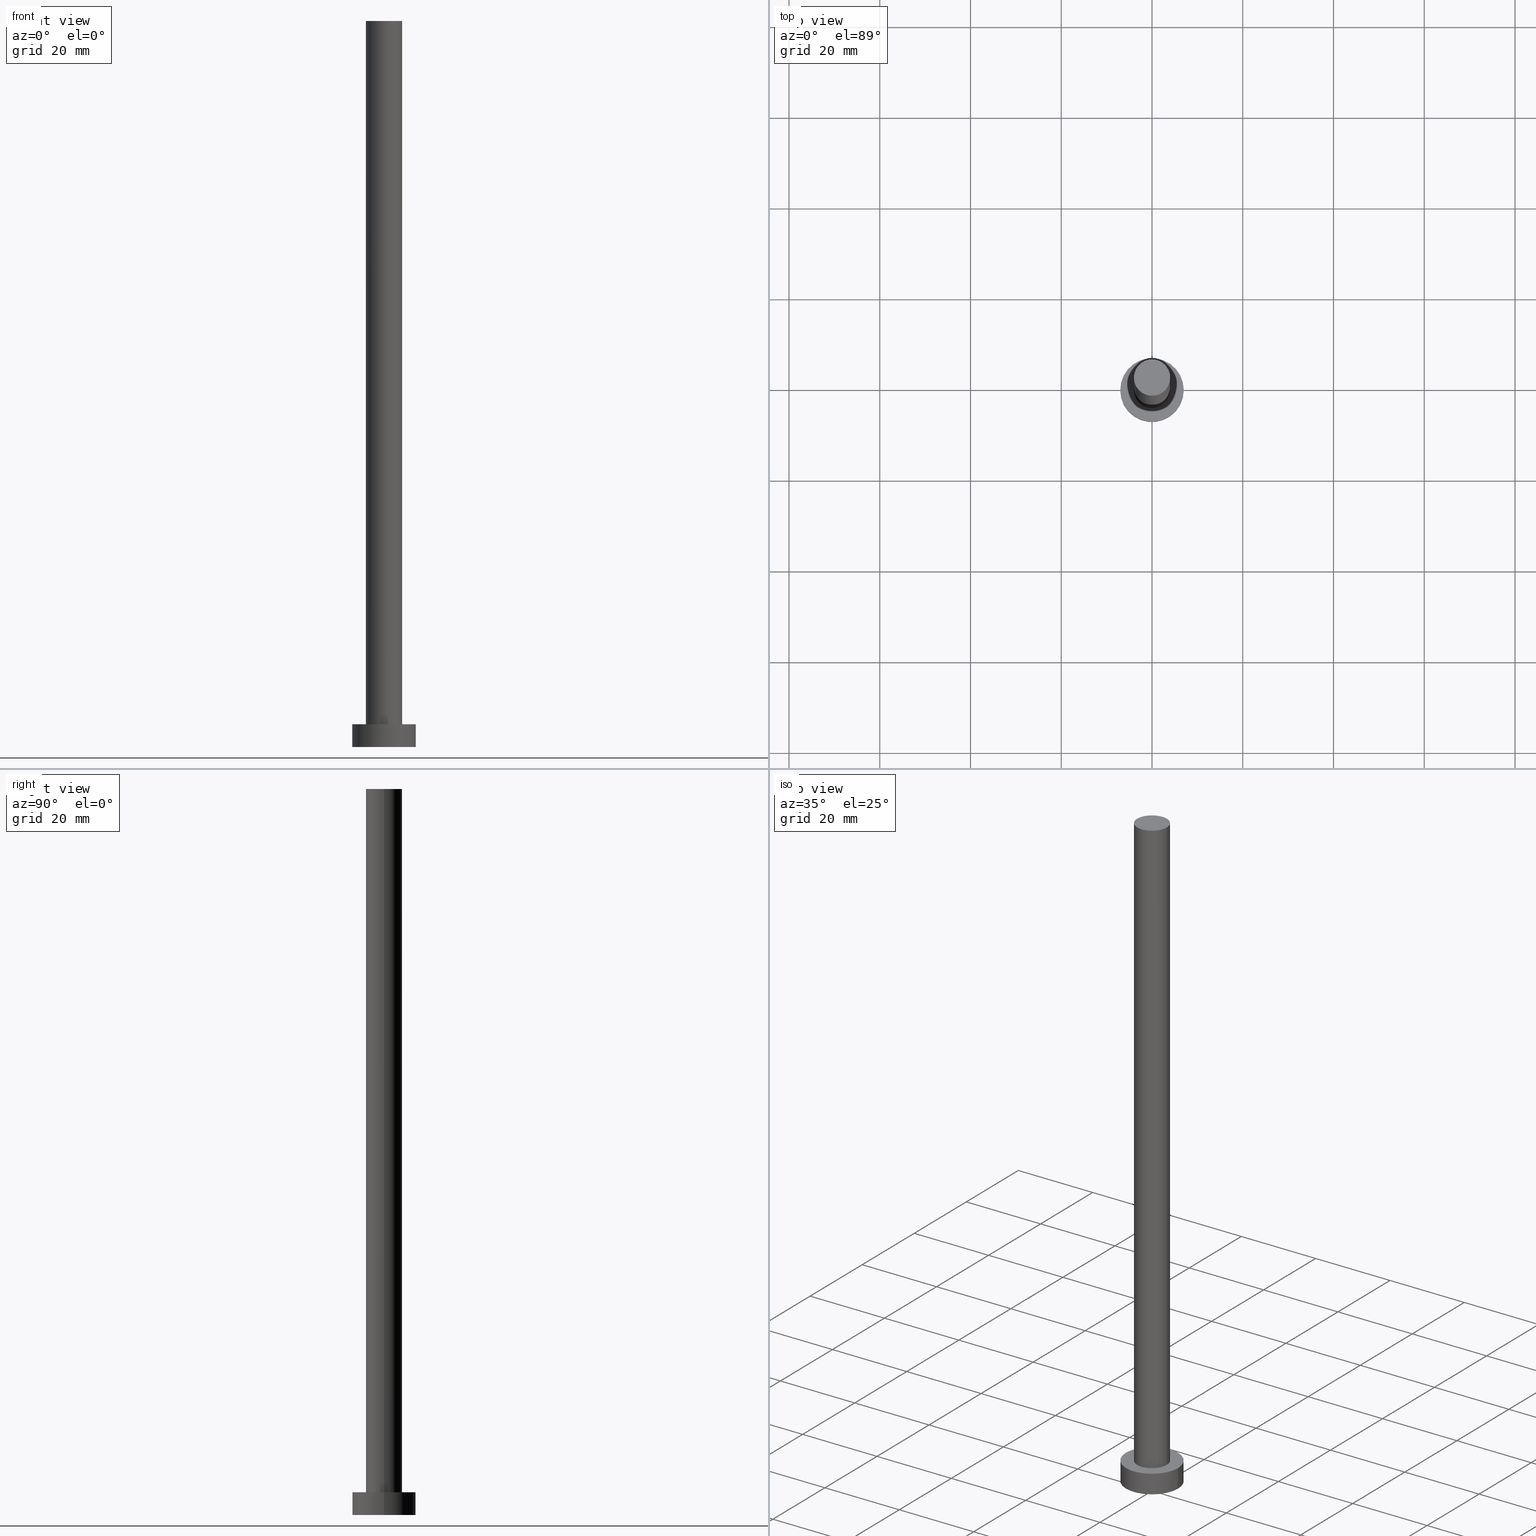
[diagram: canonical four-view strip — front | top / right | iso, engineering-drawing reading convention]
A machine part, canonical four-view strip (front | top / right | iso — engineering-drawing reading convention). The complete STEP part file that produces these views, byte-faithful:
ISO-10303-21;
HEADER;
FILE_DESCRIPTION (( 'STEP AP203' ),
    '1' );
FILE_NAME ('0828.STEP',
    '2023-02-13T11:45:11',
    ( '' ),
    ( '' ),
    'SwSTEP 2.0',
    'SolidWorks 2019',
    '' );
FILE_SCHEMA (( 'CONFIG_CONTROL_DESIGN' ));
ENDSEC;

DATA;
#1 = ORIENTED_EDGE ( 'NONE', *, *, #160, .F. ) ;
#2 = CIRCLE ( 'NONE', #124, 7.000000000000000000 ) ;
#3 = ORIENTED_EDGE ( 'NONE', *, *, #41, .F. ) ;
#4 = FACE_OUTER_BOUND ( 'NONE', #171, .T. ) ;
#5 = ORIENTED_EDGE ( 'NONE', *, *, #196, .F. ) ;
#6 = VECTOR ( 'NONE', #244, 1000.000000000000000 ) ;
#7 = CARTESIAN_POINT ( 'NONE',  ( -7.000000000000000000, 0.000000000000000000, 0.000000000000000000 ) ) ;
#8 = ORIENTED_EDGE ( 'NONE', *, *, #23, .F. ) ;
#9 = LINE ( 'NONE', #162, #6 ) ;
#10 = CARTESIAN_POINT ( 'NONE',  ( 0.000000000000000000, 0.000000000000000000, 5.000000000000000000 ) ) ;
#11 = ORGANIZATION ( 'NEUR�EN�', 'NEUR�EN�', '' ) ;
#12 = DIRECTION ( 'NONE',  ( 1.000000000000000000, 0.000000000000000000, 0.000000000000000000 ) ) ;
#13 = DIRECTION ( 'NONE',  ( 0.000000000000000000, 0.000000000000000000, 1.000000000000000000 ) ) ;
#14 = APPROVAL_DATE_TIME ( #173, #46 ) ;
#15 = AXIS2_PLACEMENT_3D ( 'NONE', #28, #184, #12 ) ;
#16 = DATE_AND_TIME ( #232, #217 ) ;
#17 = PERSON_AND_ORGANIZATION_ROLE ( 'creator' ) ;
#18 = CIRCLE ( 'NONE', #216, 4.000000000000000000 ) ;
#19 = ORIENTED_EDGE ( 'NONE', *, *, #196, .T. ) ;
#20 = EDGE_LOOP ( 'NONE', ( #179, #61 ) ) ;
#21 = ORIENTED_EDGE ( 'NONE', *, *, #99, .T. ) ;
#22 = APPROVAL_PERSON_ORGANIZATION ( #214, #111, #149 ) ;
#23 = EDGE_CURVE ( 'NONE', #197, #116, #25, .T. ) ;
#24 = CARTESIAN_POINT ( 'NONE',  ( 0.000000000000000000, 0.000000000000000000, 160.0000000000000000 ) ) ;
#25 = LINE ( 'NONE', #120, #129 ) ;
#26 = FACE_OUTER_BOUND ( 'NONE', #236, .T. ) ;
#27 = DIRECTION ( 'NONE',  ( 1.000000000000000000, 0.000000000000000000, 0.000000000000000000 ) ) ;
#28 = CARTESIAN_POINT ( 'NONE',  ( 0.000000000000000000, 0.000000000000000000, 0.000000000000000000 ) ) ;
#29 = FACE_OUTER_BOUND ( 'NONE', #195, .T. ) ;
#30 = DIRECTION ( 'NONE',  ( -1.000000000000000000, 0.000000000000000000, 0.000000000000000000 ) ) ;
#31 = PERSON_AND_ORGANIZATION_ROLE ( 'creator' ) ;
#32 = VECTOR ( 'NONE', #198, 1000.000000000000000 ) ;
#33 = SECURITY_CLASSIFICATION ( '', '', #249 ) ;
#34 = DATE_AND_TIME ( #189, #140 ) ;
#35 = CARTESIAN_POINT ( 'NONE',  ( 0.000000000000000000, 0.000000000000000000, 0.000000000000000000 ) ) ;
#36 = FACE_OUTER_BOUND ( 'NONE', #20, .T. ) ;
#37 = APPLICATION_CONTEXT ( 'configuration controlled 3d designs of mechanical parts and assemblies' ) ;
#38 = DIRECTION ( 'NONE',  ( 1.000000000000000000, 0.000000000000000000, 0.000000000000000000 ) ) ;
#39 = PRODUCT_RELATED_PRODUCT_CATEGORY ( 'detail', '', ( #194 ) ) ;
#40 = LINE ( 'NONE', #83, #32 ) ;
#41 = EDGE_CURVE ( 'NONE', #175, #116, #210, .T. ) ;
#42 = ORIENTED_EDGE ( 'NONE', *, *, #188, .T. ) ;
#43 = FACE_OUTER_BOUND ( 'NONE', #117, .T. ) ;
#44 = VERTEX_POINT ( 'NONE', #238 ) ;
#45 = DIRECTION ( 'NONE',  ( -1.000000000000000000, 0.000000000000000000, 0.000000000000000000 ) ) ;
#46 = APPROVAL ( #98, 'NEUR�EN�' ) ;
#47 = DIRECTION ( 'NONE',  ( 1.000000000000000000, 0.000000000000000000, 0.000000000000000000 ) ) ;
#48 = CARTESIAN_POINT ( 'NONE',  ( 7.000000000000000000, 8.572527594031473190E-16, 5.000000000000000000 ) ) ;
#49 = CARTESIAN_POINT ( 'NONE',  ( 7.000000000000000000, 8.572527594031473190E-16, 0.000000000000000000 ) ) ;
#50 = EDGE_CURVE ( 'NONE', #241, #178, #167, .T. ) ;
#51 = CARTESIAN_POINT ( 'NONE',  ( 0.000000000000000000, 0.000000000000000000, 160.0000000000000000 ) ) ;
#52 = AXIS2_PLACEMENT_3D ( 'NONE', #69, #64, #27 ) ;
#53 = CC_DESIGN_SECURITY_CLASSIFICATION ( #33, ( #218 ) ) ;
#54 = PERSON_AND_ORGANIZATION ( #70, #11 ) ;
#55 = EDGE_CURVE ( 'NONE', #133, #175, #40, .T. ) ;
#56 = COORDINATED_UNIVERSAL_TIME_OFFSET ( 1, 0, .AHEAD. ) ;
#57 = DIRECTION ( 'NONE',  ( 0.000000000000000000, 0.000000000000000000, 1.000000000000000000 ) ) ;
#58 = DIRECTION ( 'NONE',  ( -0.000000000000000000, -0.000000000000000000, -1.000000000000000000 ) ) ;
#59 = CC_DESIGN_PERSON_AND_ORGANIZATION_ASSIGNMENT ( #127, #31, ( #218 ) ) ;
#60 = ORIENTED_EDGE ( 'NONE', *, *, #188, .F. ) ;
#61 = ORIENTED_EDGE ( 'NONE', *, *, #50, .T. ) ;
#62 = ORIENTED_EDGE ( 'NONE', *, *, #55, .T. ) ;
#63 = CC_DESIGN_PERSON_AND_ORGANIZATION_ASSIGNMENT ( #153, #166, ( #218 ) ) ;
#64 = DIRECTION ( 'NONE',  ( 0.000000000000000000, 0.000000000000000000, 1.000000000000000000 ) ) ;
#65 = AXIS2_PLACEMENT_3D ( 'NONE', #148, #58, #201 ) ;
#66 = CARTESIAN_POINT ( 'NONE',  ( 0.000000000000000000, 0.000000000000000000, 5.000000000000000000 ) ) ;
#67 = DIRECTION ( 'NONE',  ( 1.000000000000000000, 0.000000000000000000, 0.000000000000000000 ) ) ;
#68 = CC_DESIGN_PERSON_AND_ORGANIZATION_ASSIGNMENT ( #231, #17, ( #235 ) ) ;
#69 = CARTESIAN_POINT ( 'NONE',  ( 0.000000000000000000, 0.000000000000000000, 5.000000000000000000 ) ) ;
#70 = PERSON ( 'NEUR�EN�', 'NEUR�EN�', 'NEUR�EN�', ('NEUR�EN�'), ('NEUR�EN�'), ('NEUR�EN�') ) ;
#71 = CALENDAR_DATE ( 2023, 13, 2 ) ;
#72 = AXIS2_PLACEMENT_3D ( 'NONE', #24, #57, #130 ) ;
#73 = AXIS2_PLACEMENT_3D ( 'NONE', #78, #135, #252 ) ;
#74 = ADVANCED_FACE ( 'NONE', ( #156, #4 ), #202, .T. ) ;
#75 = COORDINATED_UNIVERSAL_TIME_OFFSET ( 1, 0, .AHEAD. ) ;
#76 = COORDINATED_UNIVERSAL_TIME_OFFSET ( 1, 0, .AHEAD. ) ;
#77 = MANIFOLD_SOLID_BREP ( 'P�idat vysunut�m3', #114 ) ;
#78 = CARTESIAN_POINT ( 'NONE',  ( 0.000000000000000000, 0.000000000000000000, 160.0000000000000000 ) ) ;
#79 = ADVANCED_FACE ( 'NONE', ( #43 ), #119, .T. ) ;
#80 = ORIENTED_EDGE ( 'NONE', *, *, #147, .T. ) ;
#81 = PRODUCT_DEFINITION_SHAPE ( 'NONE', 'NONE',  #235 ) ;
#82 = CC_DESIGN_APPROVAL ( #186, ( #218 ) ) ;
#83 = CARTESIAN_POINT ( 'NONE',  ( 7.000000000000000000, 8.572527594031473190E-16, 5.000000000000000000 ) ) ;
#84 = CC_DESIGN_DATE_AND_TIME_ASSIGNMENT ( #96, #208, ( #33 ) ) ;
#85 = AXIS2_PLACEMENT_3D ( 'NONE', #180, #234, #223 ) ;
#86 = FACE_OUTER_BOUND ( 'NONE', #163, .T. ) ;
#87 = DIRECTION ( 'NONE',  ( 0.000000000000000000, 0.000000000000000000, 1.000000000000000000 ) ) ;
#88 = ADVANCED_BREP_SHAPE_REPRESENTATION ( '0828', ( #77, #145 ), #150 ) ;
#89 = DIRECTION ( 'NONE',  ( 1.000000000000000000, 0.000000000000000000, -0.000000000000000000 ) ) ;
#90 = DIRECTION ( 'NONE',  ( 0.000000000000000000, 0.000000000000000000, 1.000000000000000000 ) ) ;
#91 = ADVANCED_FACE ( 'NONE', ( #36 ), #233, .T. ) ;
#92 = CC_DESIGN_DATE_AND_TIME_ASSIGNMENT ( #16, #187, ( #235 ) ) ;
#93 = APPROVAL_DATE_TIME ( #209, #111 ) ;
#94 = APPROVAL_PERSON_ORGANIZATION ( #54, #186, #237 ) ;
#95 = PERSON_AND_ORGANIZATION ( #70, #11 ) ;
#96 = DATE_AND_TIME ( #247, #158 ) ;
#97 = VERTEX_POINT ( 'NONE', #112 ) ;
#98 = APPROVAL_STATUS ( 'not_yet_approved' ) ;
#99 = EDGE_CURVE ( 'NONE', #44, #97, #18, .T. ) ;
#100 = AXIS2_PLACEMENT_3D ( 'NONE', #51, #87, #141 ) ;
#101 = CC_DESIGN_APPROVAL ( #46, ( #33 ) ) ;
#102 = CARTESIAN_POINT ( 'NONE',  ( 4.000000000000000000, 4.898587196589412829E-16, 160.0000000000000000 ) ) ;
#103 = DIRECTION ( 'NONE',  ( 0.000000000000000000, 0.000000000000000000, 1.000000000000000000 ) ) ;
#104 = ADVANCED_FACE ( 'NONE', ( #183 ), #161, .T. ) ;
#105 = DIRECTION ( 'NONE',  ( 0.000000000000000000, 0.000000000000000000, 1.000000000000000000 ) ) ;
#106 = AXIS2_PLACEMENT_3D ( 'NONE', #136, #213, #191 ) ;
#107 = CYLINDRICAL_SURFACE ( 'NONE', #200, 7.000000000000000000 ) ;
#108 = CARTESIAN_POINT ( 'NONE',  ( 4.000000000000000000, 4.898587196589412829E-16, 160.0000000000000000 ) ) ;
#109 = MECHANICAL_CONTEXT ( 'NONE', #37, 'mechanical' ) ;
#110 = APPROVAL_DATE_TIME ( #34, #186 ) ;
#111 = APPROVAL ( #131, 'NEUR�EN�' ) ;
#112 = CARTESIAN_POINT ( 'NONE',  ( 4.000000000000000000, 4.898587196589412829E-16, 5.000000000000000000 ) ) ;
#113 = ORIENTED_EDGE ( 'NONE', *, *, #227, .F. ) ;
#114 = CLOSED_SHELL ( 'NONE', ( #142, #104, #165, #74, #157, #79, #91 ) ) ;
#115 = CIRCLE ( 'NONE', #230, 7.000000000000000000 ) ;
#116 = VERTEX_POINT ( 'NONE', #7 ) ;
#117 = EDGE_LOOP ( 'NONE', ( #1, #154, #220, #21 ) ) ;
#118 = EDGE_LOOP ( 'NONE', ( #152, #62, #182, #8 ) ) ;
#119 = CYLINDRICAL_SURFACE ( 'NONE', #65, 4.000000000000000000 ) ;
#120 = CARTESIAN_POINT ( 'NONE',  ( -7.000000000000000000, 0.000000000000000000, 5.000000000000000000 ) ) ;
#121 =( NAMED_UNIT ( * ) PLANE_ANGLE_UNIT ( ) SI_UNIT ( $, .RADIAN. ) );
#122 = CARTESIAN_POINT ( 'NONE',  ( 0.000000000000000000, 0.000000000000000000, 160.0000000000000000 ) ) ;
#123 = CARTESIAN_POINT ( 'NONE',  ( 0.000000000000000000, 0.000000000000000000, 0.000000000000000000 ) ) ;
#124 = AXIS2_PLACEMENT_3D ( 'NONE', #66, #105, #185 ) ;
#125 = ORIENTED_EDGE ( 'NONE', *, *, #50, .F. ) ;
#126 = COORDINATED_UNIVERSAL_TIME_OFFSET ( 1, 0, .AHEAD. ) ;
#127 = PERSON_AND_ORGANIZATION ( #70, #11 ) ;
#128 = CALENDAR_DATE ( 2023, 13, 2 ) ;
#129 = VECTOR ( 'NONE', #151, 1000.000000000000000 ) ;
#130 = DIRECTION ( 'NONE',  ( 1.000000000000000000, 0.000000000000000000, -0.000000000000000000 ) ) ;
#131 = APPROVAL_STATUS ( 'not_yet_approved' ) ;
#132 = AXIS2_PLACEMENT_3D ( 'NONE', #123, #103, #89 ) ;
#133 = VERTEX_POINT ( 'NONE', #48 ) ;
#134 = ORIENTED_EDGE ( 'NONE', *, *, #23, .T. ) ;
#135 = DIRECTION ( 'NONE',  ( 0.000000000000000000, 0.000000000000000000, 1.000000000000000000 ) ) ;
#136 = CARTESIAN_POINT ( 'NONE',  ( 0.000000000000000000, 0.000000000000000000, 0.000000000000000000 ) ) ;
#137 = CARTESIAN_POINT ( 'NONE',  ( 0.000000000000000000, 0.000000000000000000, 5.000000000000000000 ) ) ;
#138 = CARTESIAN_POINT ( 'NONE',  ( 0.000000000000000000, 0.000000000000000000, 5.000000000000000000 ) ) ;
#139 = EDGE_CURVE ( 'NONE', #178, #241, #199, .T. ) ;
#140 = LOCAL_TIME ( 12, 45, 11.00000000000000000, #169 ) ;
#141 = DIRECTION ( 'NONE',  ( 1.000000000000000000, 0.000000000000000000, 0.000000000000000000 ) ) ;
#142 = ADVANCED_FACE ( 'NONE', ( #29 ), #204, .T. ) ;
#143 = PLANE ( 'NONE',  #132 ) ;
#144 = SHAPE_DEFINITION_REPRESENTATION ( #81, #88 ) ;
#145 = AXIS2_PLACEMENT_3D ( 'NONE', #35, #13, #38 ) ;
#146 =( NAMED_UNIT ( * ) SI_UNIT ( $, .STERADIAN. ) SOLID_ANGLE_UNIT ( ) );
#147 = EDGE_CURVE ( 'NONE', #97, #44, #253, .T. ) ;
#148 = CARTESIAN_POINT ( 'NONE',  ( 0.000000000000000000, 0.000000000000000000, 160.0000000000000000 ) ) ;
#149 = APPROVAL_ROLE ( '' ) ;
#150 =( GEOMETRIC_REPRESENTATION_CONTEXT ( 3 ) GLOBAL_UNCERTAINTY_ASSIGNED_CONTEXT ( ( #155 ) ) GLOBAL_UNIT_ASSIGNED_CONTEXT ( ( #229, #121, #146 ) ) REPRESENTATION_CONTEXT ( 'NONE', 'WORKASPACE' ) );
#151 = DIRECTION ( 'NONE',  ( -0.000000000000000000, -0.000000000000000000, -1.000000000000000000 ) ) ;
#152 = ORIENTED_EDGE ( 'NONE', *, *, #246, .F. ) ;
#153 = PERSON_AND_ORGANIZATION ( #70, #11 ) ;
#154 = ORIENTED_EDGE ( 'NONE', *, *, #139, .F. ) ;
#155 = UNCERTAINTY_MEASURE_WITH_UNIT (LENGTH_MEASURE( 1.000000000000000082E-05 ), #229, 'distance_accuracy_value', 'NONE');
#156 = FACE_BOUND ( 'NONE', #240, .T. ) ;
#157 = ADVANCED_FACE ( 'NONE', ( #86 ), #143, .F. ) ;
#158 = LOCAL_TIME ( 12, 45, 11.00000000000000000, #75 ) ;
#159 = ORIENTED_EDGE ( 'NONE', *, *, #147, .F. ) ;
#160 = EDGE_CURVE ( 'NONE', #241, #97, #228, .T. ) ;
#161 = CYLINDRICAL_SURFACE ( 'NONE', #177, 7.000000000000000000 ) ;
#162 = CARTESIAN_POINT ( 'NONE',  ( -4.000000000000000000, 0.000000000000000000, 160.0000000000000000 ) ) ;
#163 = EDGE_LOOP ( 'NONE', ( #5, #3 ) ) ;
#164 = CARTESIAN_POINT ( 'NONE',  ( 0.000000000000000000, 0.000000000000000000, 5.000000000000000000 ) ) ;
#165 = ADVANCED_FACE ( 'NONE', ( #26 ), #107, .T. ) ;
#166 = PERSON_AND_ORGANIZATION_ROLE ( 'design_supplier' ) ;
#167 = CIRCLE ( 'NONE', #73, 4.000000000000000000 ) ;
#168 = APPROVAL_PERSON_ORGANIZATION ( #95, #46, #172 ) ;
#169 = COORDINATED_UNIVERSAL_TIME_OFFSET ( 1, 0, .AHEAD. ) ;
#170 = PERSON_AND_ORGANIZATION_ROLE ( 'design_owner' ) ;
#171 = EDGE_LOOP ( 'NONE', ( #42, #222 ) ) ;
#172 = APPROVAL_ROLE ( '' ) ;
#173 = DATE_AND_TIME ( #71, #181 ) ;
#174 = CC_DESIGN_PERSON_AND_ORGANIZATION_ASSIGNMENT ( #251, #190, ( #33 ) ) ;
#175 = VERTEX_POINT ( 'NONE', #49 ) ;
#176 = ORIENTED_EDGE ( 'NONE', *, *, #55, .F. ) ;
#177 = AXIS2_PLACEMENT_3D ( 'NONE', #10, #205, #30 ) ;
#178 = VERTEX_POINT ( 'NONE', #226 ) ;
#179 = ORIENTED_EDGE ( 'NONE', *, *, #139, .T. ) ;
#180 = CARTESIAN_POINT ( 'NONE',  ( 0.000000000000000000, 0.000000000000000000, 5.000000000000000000 ) ) ;
#181 = LOCAL_TIME ( 12, 45, 11.00000000000000000, #76 ) ;
#182 = ORIENTED_EDGE ( 'NONE', *, *, #41, .T. ) ;
#183 = FACE_OUTER_BOUND ( 'NONE', #118, .T. ) ;
#184 = DIRECTION ( 'NONE',  ( 0.000000000000000000, 0.000000000000000000, 1.000000000000000000 ) ) ;
#185 = DIRECTION ( 'NONE',  ( 1.000000000000000000, 0.000000000000000000, 0.000000000000000000 ) ) ;
#186 = APPROVAL ( #250, 'NEUR�EN�' ) ;
#187 = DATE_TIME_ROLE ( 'creation_date' ) ;
#188 = EDGE_CURVE ( 'NONE', #197, #133, #115, .T. ) ;
#189 = CALENDAR_DATE ( 2023, 13, 2 ) ;
#190 = PERSON_AND_ORGANIZATION_ROLE ( 'classification_officer' ) ;
#191 = DIRECTION ( 'NONE',  ( 1.000000000000000000, 0.000000000000000000, 0.000000000000000000 ) ) ;
#192 = VECTOR ( 'NONE', #206, 1000.000000000000000 ) ;
#193 = CC_DESIGN_APPROVAL ( #111, ( #235 ) ) ;
#194 = PRODUCT ( '0828', '0828', '', ( #109 ) ) ;
#195 = EDGE_LOOP ( 'NONE', ( #125, #242, #80, #113 ) ) ;
#196 = EDGE_CURVE ( 'NONE', #116, #175, #211, .T. ) ;
#197 = VERTEX_POINT ( 'NONE', #207 ) ;
#198 = DIRECTION ( 'NONE',  ( -0.000000000000000000, -0.000000000000000000, -1.000000000000000000 ) ) ;
#199 = CIRCLE ( 'NONE', #100, 4.000000000000000000 ) ;
#200 = AXIS2_PLACEMENT_3D ( 'NONE', #138, #225, #45 ) ;
#201 = DIRECTION ( 'NONE',  ( -1.000000000000000000, 0.000000000000000000, 0.000000000000000000 ) ) ;
#202 = PLANE ( 'NONE',  #85 ) ;
#203 = CC_DESIGN_PERSON_AND_ORGANIZATION_ASSIGNMENT ( #212, #170, ( #194 ) ) ;
#204 = CYLINDRICAL_SURFACE ( 'NONE', #248, 4.000000000000000000 ) ;
#205 = DIRECTION ( 'NONE',  ( -0.000000000000000000, -0.000000000000000000, -1.000000000000000000 ) ) ;
#206 = DIRECTION ( 'NONE',  ( -0.000000000000000000, -0.000000000000000000, -1.000000000000000000 ) ) ;
#207 = CARTESIAN_POINT ( 'NONE',  ( -7.000000000000000000, 0.000000000000000000, 5.000000000000000000 ) ) ;
#208 = DATE_TIME_ROLE ( 'classification_date' ) ;
#209 = DATE_AND_TIME ( #128, #254 ) ;
#210 = CIRCLE ( 'NONE', #106, 7.000000000000000000 ) ;
#211 = CIRCLE ( 'NONE', #15, 7.000000000000000000 ) ;
#212 = PERSON_AND_ORGANIZATION ( #70, #11 ) ;
#213 = DIRECTION ( 'NONE',  ( 0.000000000000000000, 0.000000000000000000, 1.000000000000000000 ) ) ;
#214 = PERSON_AND_ORGANIZATION ( #70, #11 ) ;
#215 = APPLICATION_PROTOCOL_DEFINITION ( 'international standard', 'config_control_design', 1994, #219 ) ;
#216 = AXIS2_PLACEMENT_3D ( 'NONE', #137, #224, #47 ) ;
#217 = LOCAL_TIME ( 12, 45, 11.00000000000000000, #126 ) ;
#218 = PRODUCT_DEFINITION_FORMATION_WITH_SPECIFIED_SOURCE ( 'LIBOVOLN�', '', #194, .NOT_KNOWN. ) ;
#219 = APPLICATION_CONTEXT ( 'configuration controlled 3d designs of mechanical parts and assemblies' ) ;
#220 = ORIENTED_EDGE ( 'NONE', *, *, #227, .T. ) ;
#221 = DESIGN_CONTEXT ( 'detailed design', #219, 'design' ) ;
#222 = ORIENTED_EDGE ( 'NONE', *, *, #246, .T. ) ;
#223 = DIRECTION ( 'NONE',  ( 1.000000000000000000, 0.000000000000000000, -0.000000000000000000 ) ) ;
#224 = DIRECTION ( 'NONE',  ( 0.000000000000000000, 0.000000000000000000, 1.000000000000000000 ) ) ;
#225 = DIRECTION ( 'NONE',  ( -0.000000000000000000, -0.000000000000000000, -1.000000000000000000 ) ) ;
#226 = CARTESIAN_POINT ( 'NONE',  ( -4.000000000000000000, 0.000000000000000000, 160.0000000000000000 ) ) ;
#227 = EDGE_CURVE ( 'NONE', #178, #44, #9, .T. ) ;
#228 = LINE ( 'NONE', #102, #192 ) ;
#229 =( LENGTH_UNIT ( ) NAMED_UNIT ( * ) SI_UNIT ( .MILLI., .METRE. ) );
#230 = AXIS2_PLACEMENT_3D ( 'NONE', #164, #90, #67 ) ;
#231 = PERSON_AND_ORGANIZATION ( #70, #11 ) ;
#232 = CALENDAR_DATE ( 2023, 13, 2 ) ;
#233 = PLANE ( 'NONE',  #72 ) ;
#234 = DIRECTION ( 'NONE',  ( 0.000000000000000000, 0.000000000000000000, 1.000000000000000000 ) ) ;
#235 = PRODUCT_DEFINITION ( 'NEZN�M�', '', #218, #221 ) ;
#236 = EDGE_LOOP ( 'NONE', ( #176, #60, #134, #19 ) ) ;
#237 = APPROVAL_ROLE ( '' ) ;
#238 = CARTESIAN_POINT ( 'NONE',  ( -4.000000000000000000, 0.000000000000000000, 5.000000000000000000 ) ) ;
#239 = ORIENTED_EDGE ( 'NONE', *, *, #99, .F. ) ;
#240 = EDGE_LOOP ( 'NONE', ( #239, #159 ) ) ;
#241 = VERTEX_POINT ( 'NONE', #108 ) ;
#242 = ORIENTED_EDGE ( 'NONE', *, *, #160, .T. ) ;
#243 = DIRECTION ( 'NONE',  ( -0.000000000000000000, -0.000000000000000000, -1.000000000000000000 ) ) ;
#244 = DIRECTION ( 'NONE',  ( -0.000000000000000000, -0.000000000000000000, -1.000000000000000000 ) ) ;
#245 = DIRECTION ( 'NONE',  ( -1.000000000000000000, 0.000000000000000000, 0.000000000000000000 ) ) ;
#246 = EDGE_CURVE ( 'NONE', #133, #197, #2, .T. ) ;
#247 = CALENDAR_DATE ( 2023, 13, 2 ) ;
#248 = AXIS2_PLACEMENT_3D ( 'NONE', #122, #243, #245 ) ;
#249 = SECURITY_CLASSIFICATION_LEVEL ( 'unclassified' ) ;
#250 = APPROVAL_STATUS ( 'not_yet_approved' ) ;
#251 = PERSON_AND_ORGANIZATION ( #70, #11 ) ;
#252 = DIRECTION ( 'NONE',  ( 1.000000000000000000, 0.000000000000000000, 0.000000000000000000 ) ) ;
#253 = CIRCLE ( 'NONE', #52, 4.000000000000000000 ) ;
#254 = LOCAL_TIME ( 12, 45, 11.00000000000000000, #56 ) ;
#255 = APPLICATION_PROTOCOL_DEFINITION ( 'international standard', 'config_control_design', 1994, #37 ) ;
ENDSEC;
END-ISO-10303-21;
